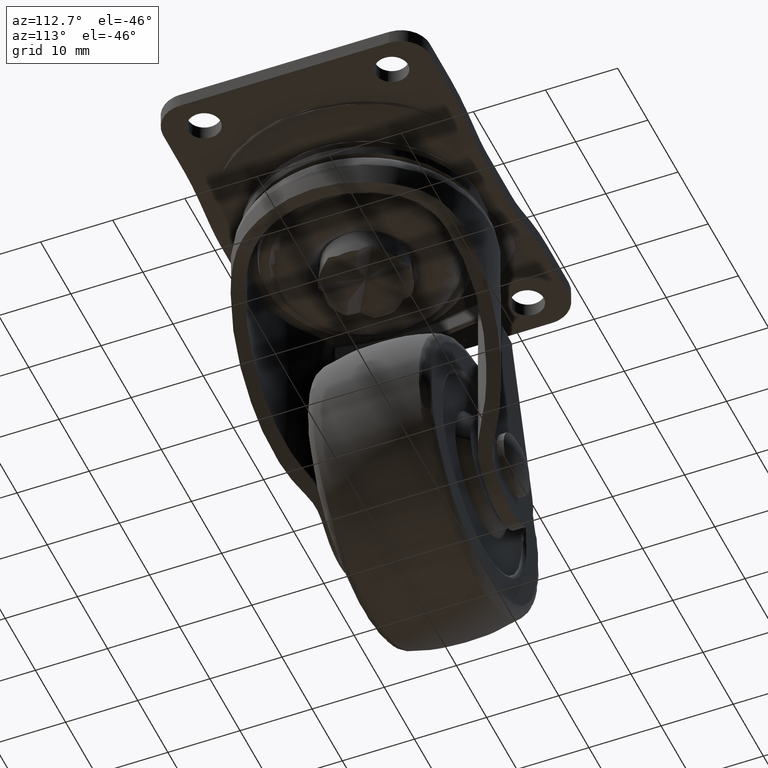
[diagram: clean part render]
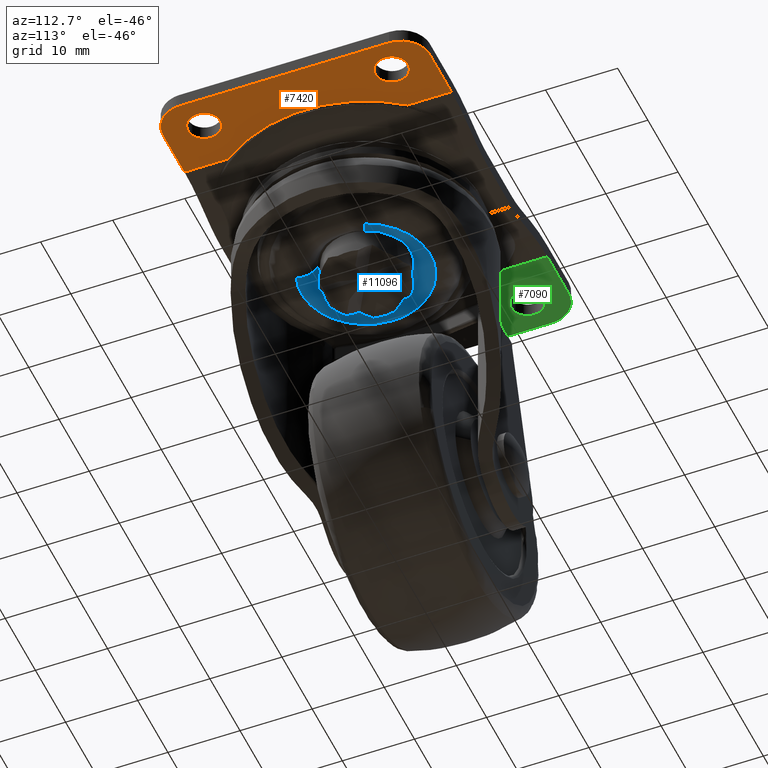
[diagram: same view with three faces highlighted in distinct colors, each labeled with its STEP entity id]
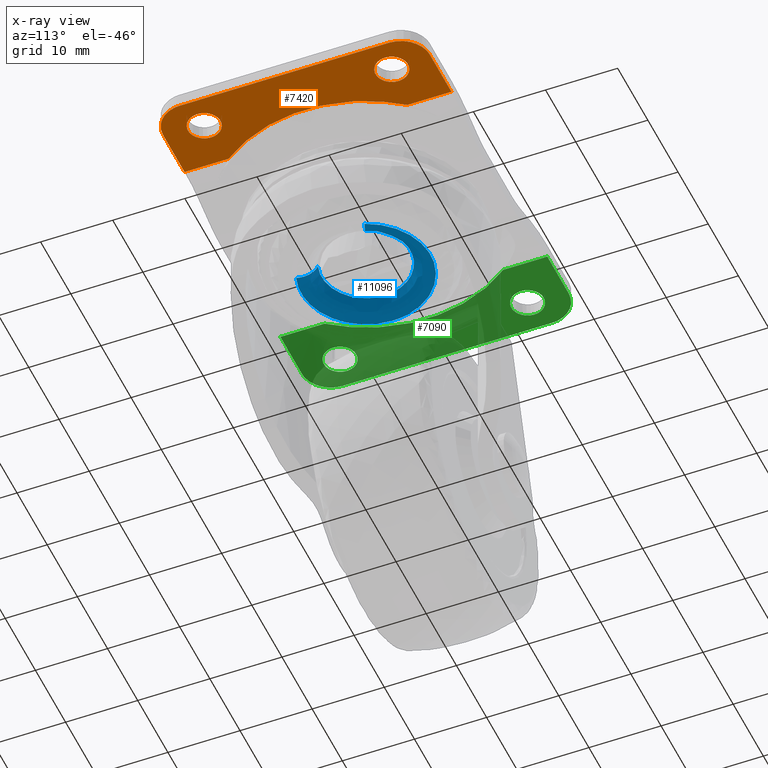
[diagram: x-ray of the same camera — body ghosted, the three highlighted faces saturated]
A machine part, auxiliary view with three faces highlighted in distinct colors.
The next image is the same camera in x-ray (body ghosted, the three faces saturated) — at least one of them is partly hidden behind the body in this view.
Their STEP definitions:

[orange] entity #7420 — the highlighted face is a freeform B-spline surface patch.
#2181=CARTESIAN_POINT('',(22.234422971940909,10.765728565691431,-2.0));
#2182=VERTEX_POINT('',#2181);
#2183=CARTESIAN_POINT('',(24.750000000000000,13.0,-2.0));
#2184=VERTEX_POINT('',#2183);
#2185=CARTESIAN_POINT('',(22.234422971940909,10.765728565691427,-2.000000000000000));
#2186=CARTESIAN_POINT('',(22.366745730700963,10.749999999999998,-2.0));
#2187=CARTESIAN_POINT('',(22.500000000000000,10.750000000000000,-2.0));
#2188=CARTESIAN_POINT('',(24.750000000000000,10.750000000000000,-2.0));
#2189=CARTESIAN_POINT('',(24.750000000000000,13.0,-2.0));
#2197=(BOUNDED_CURVE()B_SPLINE_CURVE(2,(#2185,#2186,#2187,#2188,#2189),.UNSPECIFIED.,.F.,.U.)B_SPLINE_CURVE_WITH_KNOTS((3,2,3),(0.729562473503332,0.750000000000000,1.0),.UNSPECIFIED.)CURVE()GEOMETRIC_REPRESENTATION_ITEM()RATIONAL_B_SPLINE_CURVE((0.956026754163753,0.976055948319222,1.0,0.707106781186547,1.0))REPRESENTATION_ITEM(''));
#2198=EDGE_CURVE('',#2182,#2184,#2197,.T.);
#2239=CARTESIAN_POINT('',(22.637356652507130,15.245803453111041,-1.999999999999920));
#2240=VERTEX_POINT('',#2239);
#2246=CARTESIAN_POINT('',(24.750000000000000,13.0,-2.0));
#2247=CARTESIAN_POINT('',(24.749999999999993,15.116591069120888,-2.000000000000000));
#2248=CARTESIAN_POINT('',(22.637356652507130,15.245803453111035,-1.999999999999920));
#2256=(BOUNDED_CURVE()B_SPLINE_CURVE(2,(#2246,#2247,#2248),.UNSPECIFIED.,.F.,.U.)B_SPLINE_CURVE_WITH_KNOTS((3,3),(0.0,0.239333159039881),.UNSPECIFIED.)CURVE()GEOMETRIC_REPRESENTATION_ITEM()RATIONAL_B_SPLINE_CURVE((1.0,0.719603762720069,0.976072463448954))REPRESENTATION_ITEM(''));
#2257=EDGE_CURVE('',#2184,#2240,#2256,.T.);
#2280=CARTESIAN_POINT('',(20.250000000000000,13.0,-2.0));
#2281=VERTEX_POINT('',#2280);
#2282=CARTESIAN_POINT('',(20.250000000000000,13.0,-2.0));
#2283=CARTESIAN_POINT('',(20.249999999999996,11.001607316756049,-2.000000000000000));
#2284=CARTESIAN_POINT('',(22.234422971940909,10.765728565691427,-2.0));
#2292=(BOUNDED_CURVE()B_SPLINE_CURVE(2,(#2282,#2283,#2284),.UNSPECIFIED.,.F.,.U.)B_SPLINE_CURVE_WITH_KNOTS((3,3),(0.500000000000000,0.729562473503331),.UNSPECIFIED.)CURVE()GEOMETRIC_REPRESENTATION_ITEM()RATIONAL_B_SPLINE_CURVE((1.0,0.731050832867326,0.956026754163751))REPRESENTATION_ITEM(''));
#2293=EDGE_CURVE('',#2281,#2182,#2292,.T.);
#2295=CARTESIAN_POINT('',(22.637356652507130,15.245803453111035,-1.999999999999920));
#2296=CARTESIAN_POINT('',(22.568742433107769,15.250000000000002,-2.000000000000000));
#2297=CARTESIAN_POINT('',(22.500000000000000,15.250000000000000,-2.0));
#2298=CARTESIAN_POINT('',(20.250000000000004,15.250000000000002,-2.0));
#2299=CARTESIAN_POINT('',(20.250000000000000,13.0,-2.0));
#2307=(BOUNDED_CURVE()B_SPLINE_CURVE(2,(#2295,#2296,#2297,#2298,#2299),.UNSPECIFIED.,.F.,.U.)B_SPLINE_CURVE_WITH_KNOTS((3,2,3),(0.239333159039881,0.250000000000000,0.500000000000000),.UNSPECIFIED.)CURVE()GEOMETRIC_REPRESENTATION_ITEM()RATIONAL_B_SPLINE_CURVE((0.976072463448954,0.987503018466479,1.0,0.707106781186547,1.0))REPRESENTATION_ITEM(''));
#2308=EDGE_CURVE('',#2240,#2281,#2307,.T.);
#2367=CARTESIAN_POINT('',(22.234422971940909,-15.234271434308580,-2.0));
#2368=VERTEX_POINT('',#2367);
#2369=CARTESIAN_POINT('',(24.750000000000000,-13.0,-2.0));
#2370=VERTEX_POINT('',#2369);
#2371=CARTESIAN_POINT('',(22.234422971940909,-15.234271434308580,-2.000000000000000));
#2372=CARTESIAN_POINT('',(22.366745730700963,-15.249999999999998,-2.0));
#2373=CARTESIAN_POINT('',(22.500000000000000,-15.250000000000000,-2.0));
#2374=CARTESIAN_POINT('',(24.750000000000000,-15.250000000000002,-2.0));
#2375=CARTESIAN_POINT('',(24.750000000000000,-13.0,-2.0));
#2383=(BOUNDED_CURVE()B_SPLINE_CURVE(2,(#2371,#2372,#2373,#2374,#2375),.UNSPECIFIED.,.F.,.U.)B_SPLINE_CURVE_WITH_KNOTS((3,2,3),(0.729562473503332,0.750000000000000,1.0),.UNSPECIFIED.)CURVE()GEOMETRIC_REPRESENTATION_ITEM()RATIONAL_B_SPLINE_CURVE((0.956026754163753,0.976055948319222,1.0,0.707106781186547,1.0))REPRESENTATION_ITEM(''));
#2384=EDGE_CURVE('',#2368,#2370,#2383,.T.);
#2425=CARTESIAN_POINT('',(22.637356652507130,-10.754196546888970,-1.999999999999920));
#2426=VERTEX_POINT('',#2425);
#2432=CARTESIAN_POINT('',(24.750000000000000,-13.0,-2.0));
#2433=CARTESIAN_POINT('',(24.749999999999989,-10.883408930879110,-2.0));
#2434=CARTESIAN_POINT('',(22.637356652507130,-10.754196546888970,-1.999999999999920));
#2442=(BOUNDED_CURVE()B_SPLINE_CURVE(2,(#2432,#2433,#2434),.UNSPECIFIED.,.F.,.U.)B_SPLINE_CURVE_WITH_KNOTS((3,3),(0.0,0.239333159039881),.UNSPECIFIED.)CURVE()GEOMETRIC_REPRESENTATION_ITEM()RATIONAL_B_SPLINE_CURVE((1.0,0.719603762720069,0.976072463448954))REPRESENTATION_ITEM(''));
#2443=EDGE_CURVE('',#2370,#2426,#2442,.T.);
#2466=CARTESIAN_POINT('',(20.250000000000000,-13.0,-2.0));
#2467=VERTEX_POINT('',#2466);
#2468=CARTESIAN_POINT('',(20.250000000000000,-13.0,-2.0));
#2469=CARTESIAN_POINT('',(20.249999999999996,-14.998392683243951,-2.000000000000000));
#2470=CARTESIAN_POINT('',(22.234422971940909,-15.234271434308576,-2.0));
#2478=(BOUNDED_CURVE()B_SPLINE_CURVE(2,(#2468,#2469,#2470),.UNSPECIFIED.,.F.,.U.)B_SPLINE_CURVE_WITH_KNOTS((3,3),(0.500000000000000,0.729562473503331),.UNSPECIFIED.)CURVE()GEOMETRIC_REPRESENTATION_ITEM()RATIONAL_B_SPLINE_CURVE((1.0,0.731050832867326,0.956026754163751))REPRESENTATION_ITEM(''));
#2479=EDGE_CURVE('',#2467,#2368,#2478,.T.);
#2481=CARTESIAN_POINT('',(22.637356652507130,-10.754196546888970,-1.999999999999920));
#2482=CARTESIAN_POINT('',(22.568742433107762,-10.750000000000007,-2.0));
#2483=CARTESIAN_POINT('',(22.500000000000000,-10.750000000000000,-2.0));
#2484=CARTESIAN_POINT('',(20.250000000000004,-10.750000000000000,-2.0));
#2485=CARTESIAN_POINT('',(20.250000000000000,-13.0,-2.0));
#2493=(BOUNDED_CURVE()B_SPLINE_CURVE(2,(#2481,#2482,#2483,#2484,#2485),.UNSPECIFIED.,.F.,.U.)B_SPLINE_CURVE_WITH_KNOTS((3,2,3),(0.239333159039881,0.250000000000000,0.500000000000000),.UNSPECIFIED.)CURVE()GEOMETRIC_REPRESENTATION_ITEM()RATIONAL_B_SPLINE_CURVE((0.976072463448954,0.987503018466478,1.0,0.707106781186547,1.0))REPRESENTATION_ITEM(''));
#2494=EDGE_CURVE('',#2426,#2467,#2493,.T.);
#4693=CARTESIAN_POINT('',(15.891813853437300,12.397578787227699,-2.0));
#4694=VERTEX_POINT('',#4693);
#4749=CARTESIAN_POINT('',(15.891813853437300,-12.397578787227699,-2.0));
#4750=VERTEX_POINT('',#4749);
#4780=CARTESIAN_POINT('',(15.891813853437300,-12.397578787227699,-2.0));
#4781=CARTESIAN_POINT('',(25.563457455798893,-1.197653E-014,-2.000000000000000));
#4782=CARTESIAN_POINT('',(15.891813853437309,12.397578787227690,-2.0));
#4790=(BOUNDED_CURVE()B_SPLINE_CURVE(2,(#4780,#4781,#4782),.UNSPECIFIED.,.F.,.U.)CURVE()GEOMETRIC_REPRESENTATION_ITEM()QUASI_UNIFORM_CURVE()RATIONAL_B_SPLINE_CURVE((1.0,0.788455049382130,1.0))REPRESENTATION_ITEM(''));
#4791=EDGE_CURVE('',#4750,#4694,#4790,.T.);
#7337=CARTESIAN_POINT('',(15.336960289773421,-20.348149928286819,-2.0));
#7338=CARTESIAN_POINT('',(27.554854159553422,-20.348149928286819,-2.0));
#7339=CARTESIAN_POINT('',(15.336960289773421,20.348150920704160,-2.0));
#7340=CARTESIAN_POINT('',(27.554854159553422,20.348150920704160,-2.0));
#7341=B_SPLINE_SURFACE_WITH_KNOTS('',1,1,((#7337,#7339),(#7338,#7340)),.UNSPECIFIED.,.F.,.F.,.U.,(2,2),(2,2),(0.0,12.217893869779999),(0.0,40.696300848990980),.UNSPECIFIED.);
#7342=CARTESIAN_POINT('',(15.891813853437300,-18.500000000000000,-2.0));
#7343=VERTEX_POINT('',#7342);
#7344=CARTESIAN_POINT('',(15.891813853437300,-12.397578787227699,-2.0));
#7345=CARTESIAN_POINT('',(15.891813853437300,-18.500000000000000,-2.0));
#7346=QUASI_UNIFORM_CURVE('',1,(#7344,#7345),.UNSPECIFIED.,.F.,.U.);
#7347=EDGE_CURVE('',#4750,#7343,#7346,.T.);
#7348=ORIENTED_EDGE('',*,*,#7347,.F.);
#7349=ORIENTED_EDGE('',*,*,#4791,.T.);
#7350=CARTESIAN_POINT('',(15.891813853437300,18.500000000000000,-2.0));
#7351=VERTEX_POINT('',#7350);
#7352=CARTESIAN_POINT('',(15.891813853437300,18.500000000000000,-2.0));
#7353=CARTESIAN_POINT('',(15.891813853437300,12.397578787227699,-2.0));
#7354=QUASI_UNIFORM_CURVE('',1,(#7352,#7353),.UNSPECIFIED.,.F.,.U.);
#7355=EDGE_CURVE('',#7351,#4694,#7354,.T.);
#7356=ORIENTED_EDGE('',*,*,#7355,.F.);
#7357=CARTESIAN_POINT('',(23.0,18.500000000000000,-2.0));
#7358=VERTEX_POINT('',#7357);
#7359=CARTESIAN_POINT('',(23.0,18.500000000000000,-2.0));
#7360=CARTESIAN_POINT('',(15.891813853437300,18.500000000000000,-2.0));
#7361=QUASI_UNIFORM_CURVE('',1,(#7359,#7360),.UNSPECIFIED.,.F.,.U.);
#7362=EDGE_CURVE('',#7358,#7351,#7361,.T.);
#7363=ORIENTED_EDGE('',*,*,#7362,.F.);
#7364=CARTESIAN_POINT('',(27.0,14.500000000000000,-2.0));
#7365=VERTEX_POINT('',#7364);
#7366=CARTESIAN_POINT('',(27.0,14.500000000000000,-2.0));
#7367=CARTESIAN_POINT('',(27.000000000000011,18.500000000000000,-2.000000000000000));
#7368=CARTESIAN_POINT('',(23.0,18.500000000000000,-2.0));
#7376=(BOUNDED_CURVE()B_SPLINE_CURVE(2,(#7366,#7367,#7368),.UNSPECIFIED.,.F.,.U.)CURVE()GEOMETRIC_REPRESENTATION_ITEM()QUASI_UNIFORM_CURVE()RATIONAL_B_SPLINE_CURVE((1.0,0.707106781186548,1.0))REPRESENTATION_ITEM(''));
#7377=EDGE_CURVE('',#7365,#7358,#7376,.T.);
#7378=ORIENTED_EDGE('',*,*,#7377,.F.);
#7379=CARTESIAN_POINT('',(27.0,-14.500000000000000,-2.0));
#7380=VERTEX_POINT('',#7379);
#7381=CARTESIAN_POINT('',(27.0,-14.500000000000000,-2.0));
#7382=CARTESIAN_POINT('',(27.0,14.500000000000000,-2.0));
#7383=QUASI_UNIFORM_CURVE('',1,(#7381,#7382),.UNSPECIFIED.,.F.,.U.);
#7384=EDGE_CURVE('',#7380,#7365,#7383,.T.);
#7385=ORIENTED_EDGE('',*,*,#7384,.F.);
#7386=CARTESIAN_POINT('',(23.0,-18.500000000000000,-2.0));
#7387=VERTEX_POINT('',#7386);
#7388=CARTESIAN_POINT('',(23.0,-18.500000000000000,-2.0));
#7389=CARTESIAN_POINT('',(27.000000000000011,-18.500000000000000,-2.000000000000000));
#7390=CARTESIAN_POINT('',(27.0,-14.500000000000000,-2.0));
#7398=(BOUNDED_CURVE()B_SPLINE_CURVE(2,(#7388,#7389,#7390),.UNSPECIFIED.,.F.,.U.)CURVE()GEOMETRIC_REPRESENTATION_ITEM()QUASI_UNIFORM_CURVE()RATIONAL_B_SPLINE_CURVE((1.0,0.707106781186548,1.0))REPRESENTATION_ITEM(''));
#7399=EDGE_CURVE('',#7387,#7380,#7398,.T.);
#7400=ORIENTED_EDGE('',*,*,#7399,.F.);
#7401=CARTESIAN_POINT('',(15.891813853437300,-18.500000000000000,-2.0));
#7402=CARTESIAN_POINT('',(23.0,-18.500000000000000,-2.0));
#7403=QUASI_UNIFORM_CURVE('',1,(#7401,#7402),.UNSPECIFIED.,.F.,.U.);
#7404=EDGE_CURVE('',#7343,#7387,#7403,.T.);
#7405=ORIENTED_EDGE('',*,*,#7404,.F.);
#7406=EDGE_LOOP('',(#7348,#7349,#7356,#7363,#7378,#7385,#7400,#7405));
#7407=FACE_OUTER_BOUND('',#7406,.T.);
#7408=ORIENTED_EDGE('',*,*,#2443,.T.);
#7409=ORIENTED_EDGE('',*,*,#2494,.T.);
#7410=ORIENTED_EDGE('',*,*,#2479,.T.);
#7411=ORIENTED_EDGE('',*,*,#2384,.T.);
#7412=EDGE_LOOP('',(#7408,#7409,#7410,#7411));
#7413=FACE_BOUND('',#7412,.T.);
#7414=ORIENTED_EDGE('',*,*,#2257,.T.);
#7415=ORIENTED_EDGE('',*,*,#2308,.T.);
#7416=ORIENTED_EDGE('',*,*,#2293,.T.);
#7417=ORIENTED_EDGE('',*,*,#2198,.T.);
#7418=EDGE_LOOP('',(#7414,#7415,#7416,#7417));
#7419=FACE_BOUND('',#7418,.T.);
#7420=ADVANCED_FACE('',(#7407,#7413,#7419),#7341,.F.);

[blue] entity #11096 — the highlighted face is a freeform B-spline surface patch.
#10967=CARTESIAN_POINT('',(2.868287996479504,-8.662081348475459,-13.015248090265162));
#10968=CARTESIAN_POINT('',(-5.311778321653661,-11.370758984576986,-13.015248090265159));
#10969=CARTESIAN_POINT('',(-8.483859114530580,-3.358997446136482,-13.015248090265164));
#10970=CARTESIAN_POINT('',(-11.842856560667062,5.124861668394093,-13.015248090265155));
#10971=CARTESIAN_POINT('',(-3.358997446136489,8.483859114530585,-13.015248090265164));
#10972=CARTESIAN_POINT('',(5.124861668394085,11.842856560667069,-13.015248090265155));
#10973=CARTESIAN_POINT('',(8.483859114530578,3.358997446136497,-13.015248090265164));
#10974=CARTESIAN_POINT('',(2.136358562340529,-6.451692326300186,-13.146457873248524));
#10975=CARTESIAN_POINT('',(-3.956319279182500,-8.469169883507941,-13.146457873248519));
#10976=CARTESIAN_POINT('',(-6.318948823571405,-2.501848825411321,-13.146457873248520));
#10977=CARTESIAN_POINT('',(-8.820797648982733,3.817099998160082,-13.146457873248519));
#10978=CARTESIAN_POINT('',(-2.501848825411328,6.318948823571413,-13.146457873248520));
#10979=CARTESIAN_POINT('',(3.817099998160075,8.820797648982738,-13.146457873248519));
#10980=CARTESIAN_POINT('',(6.318948823571405,2.501848825411337,-13.146457873248520));
#10981=CARTESIAN_POINT('',(1.915860968123388,-5.785800999977209,-10.922334251339253));
#10982=CARTESIAN_POINT('',(-3.547980108786447,-7.595050895596163,-10.922334251339255));
#10983=CARTESIAN_POINT('',(-5.666758204384213,-2.243628292199984,-10.922334251339253));
#10984=CARTESIAN_POINT('',(-7.910386496584201,3.423129912184228,-10.922334251339251));
#10985=CARTESIAN_POINT('',(-2.243628292199991,5.666758204384220,-10.922334251339253));
#10986=CARTESIAN_POINT('',(3.423129912184221,7.910386496584210,-10.922334251339251));
#10987=CARTESIAN_POINT('',(5.666758204384213,2.243628292199999,-10.922334251339253));
#10995=(BOUNDED_SURFACE()B_SPLINE_SURFACE(2,2,((#10967,#10974,#10981),(#10968,#10975,#10982),(#10969,#10976,#10983),(#10970,#10977,#10984),(#10971,#10978,#10985),(#10972,#10979,#10986),(#10973,#10980,#10987)),.UNSPECIFIED.,.F.,.F.,.U.)B_SPLINE_SURFACE_WITH_KNOTS((3,2,2,3),(3,3),(0.0,14.513442219473720,29.631611198092180,44.749780176710637),(0.0,4.115594340262043),.UNSPECIFIED.)GEOMETRIC_REPRESENTATION_ITEM()RATIONAL_B_SPLINE_SURFACE(((0.896402566364253,0.708035292552518,0.897209779302198),(0.659182116510876,0.520663617243051,0.659775711791474),(0.917030431568894,0.724328481709863,0.917856219955305),(0.648438436716792,0.512177581223600,0.649022357284647),(0.917030431568894,0.724328481709863,0.917856219955305),(0.648438436716792,0.512177581223600,0.649022357284647),(0.917030431568894,0.724328481709863,0.917856219955305)))REPRESENTATION_ITEM('')SURFACE());
#10996=CARTESIAN_POINT('',(1.933227578655290,-5.838247265190912,-11.081737370675160));
#10997=VERTEX_POINT('',#10996);
#10998=CARTESIAN_POINT('',(-6.150000000000000,7.105427E-015,-11.081737370593000));
#10999=VERTEX_POINT('',#10998);
#11000=CARTESIAN_POINT('',(1.933227578655291,-5.838247265190911,-11.081737370675160));
#11001=CARTESIAN_POINT('',(0.991750449071670,-6.149999999999994,-11.081737370593004));
#11002=CARTESIAN_POINT('',(0.0,-6.149999999999993,-11.081737370593000));
#11003=CARTESIAN_POINT('',(-6.150000000000002,-6.149999999999995,-11.081737370592998));
#11004=CARTESIAN_POINT('',(-6.150000000000000,7.105427E-015,-11.081737370593000));
#11012=(BOUNDED_CURVE()B_SPLINE_CURVE(2,(#11000,#11001,#11002,#11003,#11004),.UNSPECIFIED.,.F.,.U.)B_SPLINE_CURVE_WITH_KNOTS((3,2,3),(0.696555767335041,0.750000000000000,1.0),.UNSPECIFIED.)CURVE()GEOMETRIC_REPRESENTATION_ITEM()RATIONAL_B_SPLINE_CURVE((0.901543151002732,0.937386186670980,1.0,0.707106781186548,1.0))REPRESENTATION_ITEM(''));
#11013=EDGE_CURVE('',#10997,#10999,#11012,.T.);
#11014=ORIENTED_EDGE('',*,*,#11013,.F.);
#11015=CARTESIAN_POINT('',(2.815230648673217,-8.501850903036869,-13.020000000000000));
#11016=VERTEX_POINT('',#11015);
#11017=CARTESIAN_POINT('',(2.815230648673216,-8.501850903036869,-13.020000000000001));
#11018=CARTESIAN_POINT('',(2.163783012193815,-6.534512745957459,-13.019999999841287));
#11019=CARTESIAN_POINT('',(1.933227578655291,-5.838247265190912,-11.081737370675160));
#11027=(BOUNDED_CURVE()B_SPLINE_CURVE(2,(#11017,#11018,#11019),.UNSPECIFIED.,.F.,.U.)B_SPLINE_CURVE_WITH_KNOTS((3,3),(-1.665964907277965,-0.330894858058752),.UNSPECIFIED.)CURVE()GEOMETRIC_REPRESENTATION_ITEM()RATIONAL_B_SPLINE_CURVE((0.880072341176353,0.724402107398947,0.880806375445737))REPRESENTATION_ITEM(''));
#11028=EDGE_CURVE('',#11016,#10997,#11027,.T.);
#11029=ORIENTED_EDGE('',*,*,#11028,.F.);
#11030=CARTESIAN_POINT('',(-8.955835660883670,7.105427E-015,-13.020000000000000));
#11031=VERTEX_POINT('',#11030);
#11032=CARTESIAN_POINT('',(-8.955835660883670,7.105427E-015,-13.020000000000000));
#11033=CARTESIAN_POINT('',(-8.955835660883670,-8.955835660883663,-13.019999999999998));
#11034=CARTESIAN_POINT('',(0.0,-8.955835660883663,-13.020000000000000));
#11035=CARTESIAN_POINT('',(1.444220168882712,-8.955835660883663,-13.020000000000003));
#11036=CARTESIAN_POINT('',(2.815230648673217,-8.501850903036869,-13.020000000000001));
#11044=(BOUNDED_CURVE()B_SPLINE_CURVE(2,(#11032,#11033,#11034,#11035,#11036),.UNSPECIFIED.,.F.,.U.)B_SPLINE_CURVE_WITH_KNOTS((3,2,3),(0.0,0.250000000000000,0.303444232665722),.UNSPECIFIED.)CURVE()GEOMETRIC_REPRESENTATION_ITEM()RATIONAL_B_SPLINE_CURVE((1.0,0.707106781186547,1.0,0.937386186670087,0.901543151001709))REPRESENTATION_ITEM(''));
#11045=EDGE_CURVE('',#11031,#11016,#11044,.T.);
#11046=ORIENTED_EDGE('',*,*,#11045,.F.);
#11047=CARTESIAN_POINT('',(8.326928380527622,3.296859422201211,-13.019999999999300));
#11048=VERTEX_POINT('',#11047);
#11049=CARTESIAN_POINT('',(8.326928380527622,3.296859422201211,-13.019999999999305));
#11050=CARTESIAN_POINT('',(6.086384117099777,8.955836159055076,-13.019999999999353));
#11051=CARTESIAN_POINT('',(0.000000801054922,8.955835978043300,-13.019999999999589));
#11052=CARTESIAN_POINT('',(-8.955835532554536,8.955835711692703,-13.019999999999932));
#11053=CARTESIAN_POINT('',(-8.955835660883670,7.105427E-015,-13.020000000000000));
#11061=(BOUNDED_CURVE()B_SPLINE_CURVE(2,(#11049,#11050,#11051,#11052,#11053),.UNSPECIFIED.,.F.,.U.)B_SPLINE_CURVE_WITH_KNOTS((3,2,3),(0.562504973149508,0.750000000000000,1.0),.UNSPECIFIED.)CURVE()GEOMETRIC_REPRESENTATION_ITEM()RATIONAL_B_SPLINE_CURVE((0.890159216769692,0.780335912296979,1.0,0.707106781186547,1.0))REPRESENTATION_ITEM(''));
#11062=EDGE_CURVE('',#11048,#11031,#11061,.T.);
#11063=ORIENTED_EDGE('',*,*,#11062,.F.);
#11064=CARTESIAN_POINT('',(5.718125388297992,2.263965999142458,-11.081737370930510));
#11065=VERTEX_POINT('',#11064);
#11066=CARTESIAN_POINT('',(8.326928380527622,3.296859422201212,-13.019999999999296));
#11067=CARTESIAN_POINT('',(6.400066379062136,2.533963162233119,-13.020000999461725));
#11068=CARTESIAN_POINT('',(5.718125388297992,2.263965999142459,-11.081737370930510));
#11076=(BOUNDED_CURVE()B_SPLINE_CURVE(2,(#11066,#11067,#11068),.UNSPECIFIED.,.F.,.U.)B_SPLINE_CURVE_WITH_KNOTS((3,3),(-1.665965473646556,-0.330894858272612),.UNSPECIFIED.)CURVE()GEOMETRIC_REPRESENTATION_ITEM()RATIONAL_B_SPLINE_CURVE((0.900324553100960,0.741071859097114,0.901075343674851))REPRESENTATION_ITEM(''));
#11077=EDGE_CURVE('',#11048,#11065,#11076,.T.);
#11078=ORIENTED_EDGE('',*,*,#11077,.T.);
#11079=CARTESIAN_POINT('',(-6.150000000000000,7.105427E-015,-11.081737370593000));
#11080=CARTESIAN_POINT('',(-6.150000000000002,6.150000000000008,-11.081737370592998));
#11081=CARTESIAN_POINT('',(0.0,6.150000000000008,-11.081737370593000));
#11082=CARTESIAN_POINT('',(4.179535683947729,6.150000000000008,-11.081737370593000));
#11083=CARTESIAN_POINT('',(5.718125388297992,2.263965999142458,-11.081737370930510));
#11091=(BOUNDED_CURVE()B_SPLINE_CURVE(2,(#11079,#11080,#11081,#11082,#11083),.UNSPECIFIED.,.F.,.U.)B_SPLINE_CURVE_WITH_KNOTS((3,2,3),(0.0,0.250000000000000,0.437494949231637),.UNSPECIFIED.)CURVE()GEOMETRIC_REPRESENTATION_ITEM()RATIONAL_B_SPLINE_CURVE((1.0,0.707106781186548,1.0,0.780336003233123,0.890159125840840))REPRESENTATION_ITEM(''));
#11092=EDGE_CURVE('',#10999,#11065,#11091,.T.);
#11093=ORIENTED_EDGE('',*,*,#11092,.F.);
#11094=EDGE_LOOP('',(#11014,#11029,#11046,#11063,#11078,#11093));
#11095=FACE_OUTER_BOUND('',#11094,.T.);
#11096=ADVANCED_FACE('',(#11095),#10995,.T.);

[green] entity #7090 — the highlighted face is a freeform B-spline surface patch.
#1995=CARTESIAN_POINT('',(-22.765577028059091,10.765728565691431,-2.0));
#1996=VERTEX_POINT('',#1995);
#1997=CARTESIAN_POINT('',(-20.250000000000000,13.0,-2.0));
#1998=VERTEX_POINT('',#1997);
#1999=CARTESIAN_POINT('',(-22.765577028059095,10.765728565691427,-2.000000000000000));
#2000=CARTESIAN_POINT('',(-22.633254269299044,10.749999999999998,-2.0));
#2001=CARTESIAN_POINT('',(-22.500000000000000,10.750000000000000,-2.0));
#2002=CARTESIAN_POINT('',(-20.250000000000004,10.750000000000000,-2.0));
#2003=CARTESIAN_POINT('',(-20.250000000000000,13.0,-2.0));
#2011=(BOUNDED_CURVE()B_SPLINE_CURVE(2,(#1999,#2000,#2001,#2002,#2003),.UNSPECIFIED.,.F.,.U.)B_SPLINE_CURVE_WITH_KNOTS((3,2,3),(0.729562473503332,0.750000000000000,1.0),.UNSPECIFIED.)CURVE()GEOMETRIC_REPRESENTATION_ITEM()RATIONAL_B_SPLINE_CURVE((0.956026754163753,0.976055948319222,1.0,0.707106781186547,1.0))REPRESENTATION_ITEM(''));
#2012=EDGE_CURVE('',#1996,#1998,#2011,.T.);
#2053=CARTESIAN_POINT('',(-22.362643347492870,15.245803453111041,-1.999999999999920));
#2054=VERTEX_POINT('',#2053);
#2060=CARTESIAN_POINT('',(-20.250000000000000,13.0,-2.0));
#2061=CARTESIAN_POINT('',(-20.250000000000004,15.116591069120886,-2.0));
#2062=CARTESIAN_POINT('',(-22.362643347492874,15.245803453111037,-1.999999999999920));
#2070=(BOUNDED_CURVE()B_SPLINE_CURVE(2,(#2060,#2061,#2062),.UNSPECIFIED.,.F.,.U.)B_SPLINE_CURVE_WITH_KNOTS((3,3),(0.0,0.239333159039881),.UNSPECIFIED.)CURVE()GEOMETRIC_REPRESENTATION_ITEM()RATIONAL_B_SPLINE_CURVE((1.0,0.719603762720069,0.976072463448954))REPRESENTATION_ITEM(''));
#2071=EDGE_CURVE('',#1998,#2054,#2070,.T.);
#2094=CARTESIAN_POINT('',(-24.750000000000000,13.0,-2.0));
#2095=VERTEX_POINT('',#2094);
#2096=CARTESIAN_POINT('',(-24.750000000000000,13.0,-2.0));
#2097=CARTESIAN_POINT('',(-24.750000000000000,11.001607316756049,-2.000000000000000));
#2098=CARTESIAN_POINT('',(-22.765577028059091,10.765728565691427,-2.0));
#2106=(BOUNDED_CURVE()B_SPLINE_CURVE(2,(#2096,#2097,#2098),.UNSPECIFIED.,.F.,.U.)B_SPLINE_CURVE_WITH_KNOTS((3,3),(0.500000000000000,0.729562473503331),.UNSPECIFIED.)CURVE()GEOMETRIC_REPRESENTATION_ITEM()RATIONAL_B_SPLINE_CURVE((1.0,0.731050832867326,0.956026754163751))REPRESENTATION_ITEM(''));
#2107=EDGE_CURVE('',#2095,#1996,#2106,.T.);
#2109=CARTESIAN_POINT('',(-22.362643347492867,15.245803453111034,-1.999999999999920));
#2110=CARTESIAN_POINT('',(-22.431257566892235,15.250000000000002,-2.000000000000000));
#2111=CARTESIAN_POINT('',(-22.500000000000000,15.250000000000000,-2.0));
#2112=CARTESIAN_POINT('',(-24.750000000000000,15.250000000000002,-2.0));
#2113=CARTESIAN_POINT('',(-24.750000000000000,13.0,-2.0));
#2121=(BOUNDED_CURVE()B_SPLINE_CURVE(2,(#2109,#2110,#2111,#2112,#2113),.UNSPECIFIED.,.F.,.U.)B_SPLINE_CURVE_WITH_KNOTS((3,2,3),(0.239333159039881,0.250000000000000,0.500000000000000),.UNSPECIFIED.)CURVE()GEOMETRIC_REPRESENTATION_ITEM()RATIONAL_B_SPLINE_CURVE((0.976072463448954,0.987503018466479,1.0,0.707106781186547,1.0))REPRESENTATION_ITEM(''));
#2122=EDGE_CURVE('',#2054,#2095,#2121,.T.);
#2553=CARTESIAN_POINT('',(-22.765577028059099,-15.234271434308580,-2.0));
#2554=VERTEX_POINT('',#2553);
#2555=CARTESIAN_POINT('',(-20.250000000000000,-13.0,-2.0));
#2556=VERTEX_POINT('',#2555);
#2557=CARTESIAN_POINT('',(-22.765577028059102,-15.234271434308571,-2.000000000000000));
#2558=CARTESIAN_POINT('',(-22.633254269299044,-15.250000000000000,-2.000000000000000));
#2559=CARTESIAN_POINT('',(-22.500000000000000,-15.250000000000000,-2.0));
#2560=CARTESIAN_POINT('',(-20.250000000000004,-15.250000000000002,-2.0));
#2561=CARTESIAN_POINT('',(-20.250000000000000,-13.0,-2.0));
#2569=(BOUNDED_CURVE()B_SPLINE_CURVE(2,(#2557,#2558,#2559,#2560,#2561),.UNSPECIFIED.,.F.,.U.)B_SPLINE_CURVE_WITH_KNOTS((3,2,3),(0.729562473503332,0.750000000000000,1.0),.UNSPECIFIED.)CURVE()GEOMETRIC_REPRESENTATION_ITEM()RATIONAL_B_SPLINE_CURVE((0.956026754163753,0.976055948319222,1.0,0.707106781186547,1.0))REPRESENTATION_ITEM(''));
#2570=EDGE_CURVE('',#2554,#2556,#2569,.T.);
#2611=CARTESIAN_POINT('',(-22.362643347492870,-10.754196546888970,-1.999999999999920));
#2612=VERTEX_POINT('',#2611);
#2618=CARTESIAN_POINT('',(-20.250000000000000,-13.0,-2.0));
#2619=CARTESIAN_POINT('',(-20.249999999999993,-10.883408930879110,-2.000000000000000));
#2620=CARTESIAN_POINT('',(-22.362643347492870,-10.754196546888968,-1.999999999999920));
#2628=(BOUNDED_CURVE()B_SPLINE_CURVE(2,(#2618,#2619,#2620),.UNSPECIFIED.,.F.,.U.)B_SPLINE_CURVE_WITH_KNOTS((3,3),(0.0,0.239333159039881),.UNSPECIFIED.)CURVE()GEOMETRIC_REPRESENTATION_ITEM()RATIONAL_B_SPLINE_CURVE((1.0,0.719603762720069,0.976072463448954))REPRESENTATION_ITEM(''));
#2629=EDGE_CURVE('',#2556,#2612,#2628,.T.);
#2652=CARTESIAN_POINT('',(-24.750000000000000,-13.0,-2.0));
#2653=VERTEX_POINT('',#2652);
#2654=CARTESIAN_POINT('',(-24.750000000000000,-13.0,-2.0));
#2655=CARTESIAN_POINT('',(-24.750000000000000,-14.998392683243951,-2.000000000000000));
#2656=CARTESIAN_POINT('',(-22.765577028059091,-15.234271434308576,-2.0));
#2664=(BOUNDED_CURVE()B_SPLINE_CURVE(2,(#2654,#2655,#2656),.UNSPECIFIED.,.F.,.U.)B_SPLINE_CURVE_WITH_KNOTS((3,3),(0.500000000000000,0.729562473503331),.UNSPECIFIED.)CURVE()GEOMETRIC_REPRESENTATION_ITEM()RATIONAL_B_SPLINE_CURVE((1.0,0.731050832867326,0.956026754163751))REPRESENTATION_ITEM(''));
#2665=EDGE_CURVE('',#2653,#2554,#2664,.T.);
#2667=CARTESIAN_POINT('',(-22.362643347492867,-10.754196546888968,-1.999999999999920));
#2668=CARTESIAN_POINT('',(-22.431257566892235,-10.750000000000005,-2.000000000000000));
#2669=CARTESIAN_POINT('',(-22.500000000000000,-10.750000000000000,-2.0));
#2670=CARTESIAN_POINT('',(-24.750000000000000,-10.750000000000000,-2.0));
#2671=CARTESIAN_POINT('',(-24.750000000000000,-13.0,-2.0));
#2679=(BOUNDED_CURVE()B_SPLINE_CURVE(2,(#2667,#2668,#2669,#2670,#2671),.UNSPECIFIED.,.F.,.U.)B_SPLINE_CURVE_WITH_KNOTS((3,2,3),(0.239333159039881,0.250000000000000,0.500000000000000),.UNSPECIFIED.)CURVE()GEOMETRIC_REPRESENTATION_ITEM()RATIONAL_B_SPLINE_CURVE((0.976072463448954,0.987503018466479,1.0,0.707106781186547,1.0))REPRESENTATION_ITEM(''));
#2680=EDGE_CURVE('',#2612,#2653,#2679,.T.);
#3721=CARTESIAN_POINT('',(-15.891813853437300,12.397578787227699,-2.0));
#3722=VERTEX_POINT('',#3721);
#3777=CARTESIAN_POINT('',(-15.891813853437300,-12.397578787227699,-2.0));
#3778=VERTEX_POINT('',#3777);
#3792=CARTESIAN_POINT('',(-15.891813853437300,12.397578787227710,-2.0));
#3793=CARTESIAN_POINT('',(-25.563457455798890,1.901257E-015,-1.999999999999999));
#3794=CARTESIAN_POINT('',(-15.891813853437300,-12.397578787227690,-2.0));
#3802=(BOUNDED_CURVE()B_SPLINE_CURVE(2,(#3792,#3793,#3794),.UNSPECIFIED.,.F.,.U.)CURVE()GEOMETRIC_REPRESENTATION_ITEM()QUASI_UNIFORM_CURVE()RATIONAL_B_SPLINE_CURVE((1.0,0.788455049382130,1.0))REPRESENTATION_ITEM(''));
#3803=EDGE_CURVE('',#3722,#3778,#3802,.T.);
#7007=CARTESIAN_POINT('',(-27.554853836804750,-20.348149928286819,-2.0));
#7008=CARTESIAN_POINT('',(-15.336960513207170,-20.348149928286819,-2.0));
#7009=CARTESIAN_POINT('',(-27.554853836804750,20.348150920704160,-2.0));
#7010=CARTESIAN_POINT('',(-15.336960513207170,20.348150920704160,-2.0));
#7011=B_SPLINE_SURFACE_WITH_KNOTS('',1,1,((#7007,#7009),(#7008,#7010)),.UNSPECIFIED.,.F.,.F.,.U.,(2,2),(2,2),(0.0,12.217893323597581),(0.0,40.696300848990980),.UNSPECIFIED.);
#7012=CARTESIAN_POINT('',(-15.891813853437300,18.500000000000000,-2.0));
#7013=VERTEX_POINT('',#7012);
#7014=CARTESIAN_POINT('',(-15.891813853437300,18.500000000000000,-2.0));
#7015=CARTESIAN_POINT('',(-15.891813853437300,12.397578787227699,-2.0));
#7016=QUASI_UNIFORM_CURVE('',1,(#7014,#7015),.UNSPECIFIED.,.F.,.U.);
#7017=EDGE_CURVE('',#7013,#3722,#7016,.T.);
#7018=ORIENTED_EDGE('',*,*,#7017,.T.);
#7019=ORIENTED_EDGE('',*,*,#3803,.T.);
#7020=CARTESIAN_POINT('',(-15.891813853437300,-18.500000000000000,-2.0));
#7021=VERTEX_POINT('',#7020);
#7022=CARTESIAN_POINT('',(-15.891813853437300,-12.397578787227699,-2.0));
#7023=CARTESIAN_POINT('',(-15.891813853437300,-18.500000000000000,-2.0));
#7024=QUASI_UNIFORM_CURVE('',1,(#7022,#7023),.UNSPECIFIED.,.F.,.U.);
#7025=EDGE_CURVE('',#3778,#7021,#7024,.T.);
#7026=ORIENTED_EDGE('',*,*,#7025,.T.);
#7027=CARTESIAN_POINT('',(-23.0,-18.500000000000000,-2.0));
#7028=VERTEX_POINT('',#7027);
#7029=CARTESIAN_POINT('',(-23.0,-18.500000000000000,-2.0));
#7030=CARTESIAN_POINT('',(-15.891813853437300,-18.500000000000000,-2.0));
#7031=QUASI_UNIFORM_CURVE('',1,(#7029,#7030),.UNSPECIFIED.,.F.,.U.);
#7032=EDGE_CURVE('',#7028,#7021,#7031,.T.);
#7033=ORIENTED_EDGE('',*,*,#7032,.F.);
#7034=CARTESIAN_POINT('',(-27.0,-14.500000000000000,-2.0));
#7035=VERTEX_POINT('',#7034);
#7036=CARTESIAN_POINT('',(-27.0,-14.500000000000000,-2.0));
#7037=CARTESIAN_POINT('',(-27.000000000000011,-18.500000000000000,-2.000000000000000));
#7038=CARTESIAN_POINT('',(-23.0,-18.500000000000000,-2.0));
#7046=(BOUNDED_CURVE()B_SPLINE_CURVE(2,(#7036,#7037,#7038),.UNSPECIFIED.,.F.,.U.)CURVE()GEOMETRIC_REPRESENTATION_ITEM()QUASI_UNIFORM_CURVE()RATIONAL_B_SPLINE_CURVE((1.0,0.707106781186548,1.0))REPRESENTATION_ITEM(''));
#7047=EDGE_CURVE('',#7035,#7028,#7046,.T.);
#7048=ORIENTED_EDGE('',*,*,#7047,.F.);
#7049=CARTESIAN_POINT('',(-27.0,14.500000000000000,-2.0));
#7050=VERTEX_POINT('',#7049);
#7051=CARTESIAN_POINT('',(-27.0,14.500000000000000,-2.0));
#7052=CARTESIAN_POINT('',(-27.0,-14.500000000000000,-2.0));
#7053=QUASI_UNIFORM_CURVE('',1,(#7051,#7052),.UNSPECIFIED.,.F.,.U.);
#7054=EDGE_CURVE('',#7050,#7035,#7053,.T.);
#7055=ORIENTED_EDGE('',*,*,#7054,.F.);
#7056=CARTESIAN_POINT('',(-23.0,18.500000000000000,-2.0));
#7057=VERTEX_POINT('',#7056);
#7058=CARTESIAN_POINT('',(-23.0,18.500000000000000,-2.0));
#7059=CARTESIAN_POINT('',(-27.000000000000011,18.500000000000000,-2.000000000000000));
#7060=CARTESIAN_POINT('',(-27.0,14.500000000000000,-2.0));
#7068=(BOUNDED_CURVE()B_SPLINE_CURVE(2,(#7058,#7059,#7060),.UNSPECIFIED.,.F.,.U.)CURVE()GEOMETRIC_REPRESENTATION_ITEM()QUASI_UNIFORM_CURVE()RATIONAL_B_SPLINE_CURVE((1.0,0.707106781186548,1.0))REPRESENTATION_ITEM(''));
#7069=EDGE_CURVE('',#7057,#7050,#7068,.T.);
#7070=ORIENTED_EDGE('',*,*,#7069,.F.);
#7071=CARTESIAN_POINT('',(-15.891813853437300,18.500000000000000,-2.0));
#7072=CARTESIAN_POINT('',(-23.0,18.500000000000000,-2.0));
#7073=QUASI_UNIFORM_CURVE('',1,(#7071,#7072),.UNSPECIFIED.,.F.,.U.);
#7074=EDGE_CURVE('',#7013,#7057,#7073,.T.);
#7075=ORIENTED_EDGE('',*,*,#7074,.F.);
#7076=EDGE_LOOP('',(#7018,#7019,#7026,#7033,#7048,#7055,#7070,#7075));
#7077=FACE_OUTER_BOUND('',#7076,.T.);
#7078=ORIENTED_EDGE('',*,*,#2629,.T.);
#7079=ORIENTED_EDGE('',*,*,#2680,.T.);
#7080=ORIENTED_EDGE('',*,*,#2665,.T.);
#7081=ORIENTED_EDGE('',*,*,#2570,.T.);
#7082=EDGE_LOOP('',(#7078,#7079,#7080,#7081));
#7083=FACE_BOUND('',#7082,.T.);
#7084=ORIENTED_EDGE('',*,*,#2071,.T.);
#7085=ORIENTED_EDGE('',*,*,#2122,.T.);
#7086=ORIENTED_EDGE('',*,*,#2107,.T.);
#7087=ORIENTED_EDGE('',*,*,#2012,.T.);
#7088=EDGE_LOOP('',(#7084,#7085,#7086,#7087));
#7089=FACE_BOUND('',#7088,.T.);
#7090=ADVANCED_FACE('',(#7077,#7083,#7089),#7011,.F.);